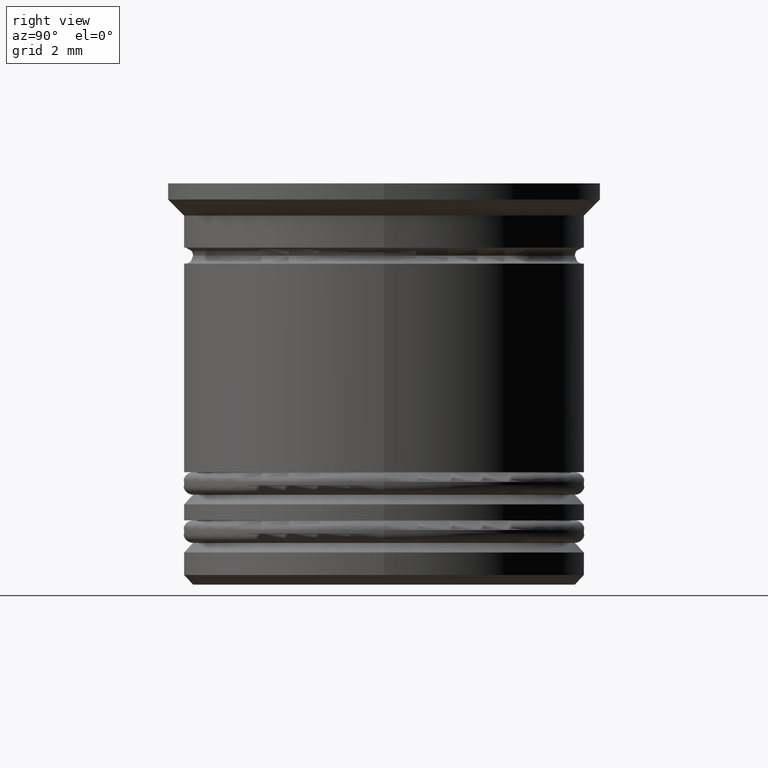
[diagram: clean part render]
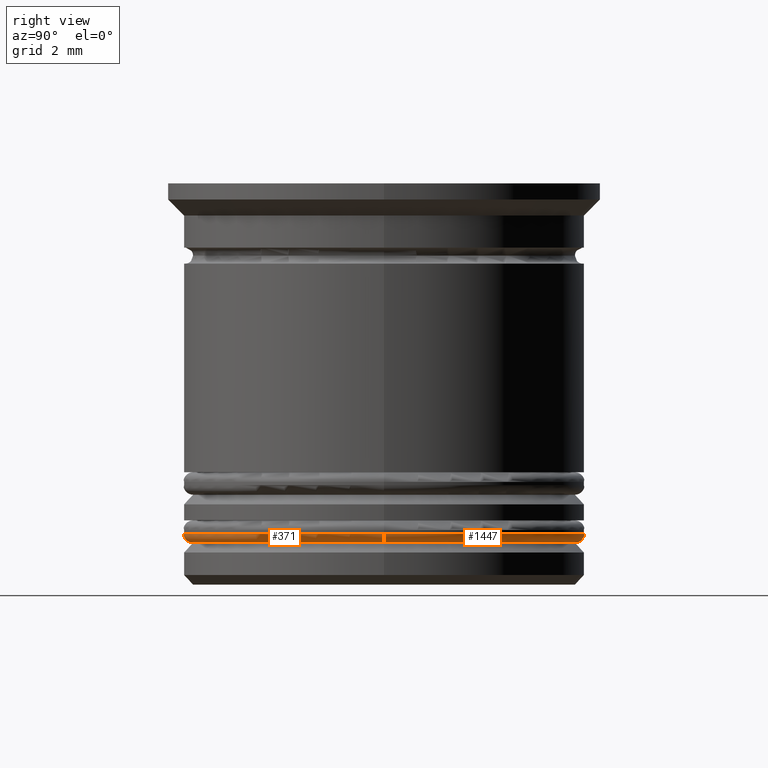
[diagram: same view with one multi-face feature highlighted, each face labeled with its STEP entity id]
A machine part, right view. The highlighted faces form ONE feature: a constant-radius fillet chain: 2 tangent blend faces with common blend radius 0.3 mm. The faces share edges in the B-rep.
Their STEP definitions:
[1] entity #1447 (Torus):
#67 = CARTESIAN_POINT ( 'NONE',  ( 0.000000000000000000, 0.000000000000000000, -10.90000000000001101 ) ) ;
#190 = EDGE_LOOP ( 'NONE', ( #525, #657, #953, #594 ) ) ;
#200 = DIRECTION ( 'NONE',  ( -1.000000000000000000, 1.224646799147353207E-16, 0.000000000000000000 ) ) ;
#220 = AXIS2_PLACEMENT_3D ( 'NONE', #67, #1611, #1134 ) ;
#262 = FACE_OUTER_BOUND ( 'NONE', #190, .T. ) ;
#280 = DIRECTION ( 'NONE',  ( 0.000000000000000000, 0.000000000000000000, 1.000000000000000000 ) ) ;
#314 = AXIS2_PLACEMENT_3D ( 'NONE', #1294, #1582, #200 ) ;
#334 = CARTESIAN_POINT ( 'NONE',  ( 5.950000000000000178, 0.000000000000000000, -11.20000000000000995 ) ) ;
#380 = TOROIDAL_SURFACE ( 'NONE', #1802, 5.950000000000000178, 0.2999999999999999889 ) ;
#418 = CIRCLE ( 'NONE', #314, 0.2999999999999999334 ) ;
#518 = CARTESIAN_POINT ( 'NONE',  ( 6.250000000000000000, 0.000000000000000000, -10.90000000000001101 ) ) ;
#525 = ORIENTED_EDGE ( 'NONE', *, *, #1536, .F. ) ;
#548 = CIRCLE ( 'NONE', #220, 6.250000000000000000 ) ;
#594 = ORIENTED_EDGE ( 'NONE', *, *, #877, .F. ) ;
#657 = ORIENTED_EDGE ( 'NONE', *, *, #1749, .T. ) ;
#877 = EDGE_CURVE ( 'NONE', #1562, #1283, #1665, .T. ) ;
#901 = DIRECTION ( 'NONE',  ( 1.000000000000000000, 0.000000000000000000, 0.000000000000000000 ) ) ;
#903 = AXIS2_PLACEMENT_3D ( 'NONE', #1549, #1541, #1229 ) ;
#953 = ORIENTED_EDGE ( 'NONE', *, *, #1853, .F. ) ;
#963 = DIRECTION ( 'NONE',  ( 0.000000000000000000, 0.000000000000000000, -1.000000000000000000 ) ) ;
#1006 = VERTEX_POINT ( 'NONE', #1924 ) ;
#1020 = CARTESIAN_POINT ( 'NONE',  ( -5.950000000000000178, 7.470345474798855279E-16, -11.20000000000000995 ) ) ;
#1134 = DIRECTION ( 'NONE',  ( 1.000000000000000000, 0.000000000000000000, 0.000000000000000000 ) ) ;
#1229 = DIRECTION ( 'NONE',  ( 1.000000000000000000, 0.000000000000000000, 0.000000000000000000 ) ) ;
#1247 = AXIS2_PLACEMENT_3D ( 'NONE', #1586, #1748, #963 ) ;
#1283 = VERTEX_POINT ( 'NONE', #518 ) ;
#1294 = CARTESIAN_POINT ( 'NONE',  ( -5.950000000000000178, 7.286648454926751965E-16, -10.90000000000001101 ) ) ;
#1447 = ADVANCED_FACE ( 'NONE', ( #262 ), #380, .T. ) ;
#1521 = CARTESIAN_POINT ( 'NONE',  ( 0.000000000000000000, 0.000000000000000000, -10.90000000000001101 ) ) ;
#1536 = EDGE_CURVE ( 'NONE', #1828, #1562, #1762, .T. ) ;
#1541 = DIRECTION ( 'NONE',  ( -0.000000000000000000, -0.000000000000000000, -1.000000000000000000 ) ) ;
#1549 = CARTESIAN_POINT ( 'NONE',  ( 0.000000000000000000, 0.000000000000000000, -11.20000000000000995 ) ) ;
#1562 = VERTEX_POINT ( 'NONE', #334 ) ;
#1582 = DIRECTION ( 'NONE',  ( 1.224646799147353207E-16, 1.000000000000000000, -0.000000000000000000 ) ) ;
#1586 = CARTESIAN_POINT ( 'NONE',  ( 5.950000000000000178, 0.000000000000000000, -10.90000000000001101 ) ) ;
#1611 = DIRECTION ( 'NONE',  ( 0.000000000000000000, 0.000000000000000000, 1.000000000000000000 ) ) ;
#1665 = CIRCLE ( 'NONE', #1247, 0.2999999999999999334 ) ;
#1748 = DIRECTION ( 'NONE',  ( 0.000000000000000000, -1.000000000000000000, 0.000000000000000000 ) ) ;
#1749 = EDGE_CURVE ( 'NONE', #1828, #1006, #418, .T. ) ;
#1762 = CIRCLE ( 'NONE', #903, 5.950000000000000178 ) ;
#1802 = AXIS2_PLACEMENT_3D ( 'NONE', #1521, #280, #901 ) ;
#1828 = VERTEX_POINT ( 'NONE', #1020 ) ;
#1853 = EDGE_CURVE ( 'NONE', #1283, #1006, #548, .T. ) ;
#1924 = CARTESIAN_POINT ( 'NONE',  ( -6.250000000000000000, 7.654042494670957606E-16, -10.90000000000001101 ) ) ;
[2] entity #371 (Torus):
#77 = EDGE_CURVE ( 'NONE', #1006, #1283, #470, .T. ) ;
#200 = DIRECTION ( 'NONE',  ( -1.000000000000000000, 1.224646799147353207E-16, 0.000000000000000000 ) ) ;
#284 = DIRECTION ( 'NONE',  ( 0.000000000000000000, 0.000000000000000000, 1.000000000000000000 ) ) ;
#314 = AXIS2_PLACEMENT_3D ( 'NONE', #1294, #1582, #200 ) ;
#334 = CARTESIAN_POINT ( 'NONE',  ( 5.950000000000000178, 0.000000000000000000, -11.20000000000000995 ) ) ;
#368 = DIRECTION ( 'NONE',  ( 1.000000000000000000, 0.000000000000000000, 0.000000000000000000 ) ) ;
#371 = ADVANCED_FACE ( 'NONE', ( #808 ), #1690, .T. ) ;
#375 = CIRCLE ( 'NONE', #414, 5.950000000000000178 ) ;
#413 = ORIENTED_EDGE ( 'NONE', *, *, #758, .F. ) ;
#414 = AXIS2_PLACEMENT_3D ( 'NONE', #1097, #1392, #923 ) ;
#418 = CIRCLE ( 'NONE', #314, 0.2999999999999999334 ) ;
#470 = CIRCLE ( 'NONE', #1560, 6.250000000000000000 ) ;
#518 = CARTESIAN_POINT ( 'NONE',  ( 6.250000000000000000, 0.000000000000000000, -10.90000000000001101 ) ) ;
#534 = AXIS2_PLACEMENT_3D ( 'NONE', #976, #1584, #368 ) ;
#758 = EDGE_CURVE ( 'NONE', #1562, #1828, #375, .T. ) ;
#796 = ORIENTED_EDGE ( 'NONE', *, *, #877, .T. ) ;
#808 = FACE_OUTER_BOUND ( 'NONE', #1988, .T. ) ;
#813 = ORIENTED_EDGE ( 'NONE', *, *, #77, .F. ) ;
#877 = EDGE_CURVE ( 'NONE', #1562, #1283, #1665, .T. ) ;
#923 = DIRECTION ( 'NONE',  ( 1.000000000000000000, 0.000000000000000000, 0.000000000000000000 ) ) ;
#963 = DIRECTION ( 'NONE',  ( 0.000000000000000000, 0.000000000000000000, -1.000000000000000000 ) ) ;
#976 = CARTESIAN_POINT ( 'NONE',  ( 0.000000000000000000, 0.000000000000000000, -10.90000000000001101 ) ) ;
#1006 = VERTEX_POINT ( 'NONE', #1924 ) ;
#1020 = CARTESIAN_POINT ( 'NONE',  ( -5.950000000000000178, 7.470345474798855279E-16, -11.20000000000000995 ) ) ;
#1097 = CARTESIAN_POINT ( 'NONE',  ( 0.000000000000000000, 0.000000000000000000, -11.20000000000000995 ) ) ;
#1247 = AXIS2_PLACEMENT_3D ( 'NONE', #1586, #1748, #963 ) ;
#1283 = VERTEX_POINT ( 'NONE', #518 ) ;
#1294 = CARTESIAN_POINT ( 'NONE',  ( -5.950000000000000178, 7.286648454926751965E-16, -10.90000000000001101 ) ) ;
#1392 = DIRECTION ( 'NONE',  ( -0.000000000000000000, -0.000000000000000000, -1.000000000000000000 ) ) ;
#1517 = DIRECTION ( 'NONE',  ( 1.000000000000000000, 0.000000000000000000, 0.000000000000000000 ) ) ;
#1560 = AXIS2_PLACEMENT_3D ( 'NONE', #1965, #284, #1517 ) ;
#1562 = VERTEX_POINT ( 'NONE', #334 ) ;
#1582 = DIRECTION ( 'NONE',  ( 1.224646799147353207E-16, 1.000000000000000000, -0.000000000000000000 ) ) ;
#1584 = DIRECTION ( 'NONE',  ( 0.000000000000000000, 0.000000000000000000, 1.000000000000000000 ) ) ;
#1586 = CARTESIAN_POINT ( 'NONE',  ( 5.950000000000000178, 0.000000000000000000, -10.90000000000001101 ) ) ;
#1665 = CIRCLE ( 'NONE', #1247, 0.2999999999999999334 ) ;
#1684 = ORIENTED_EDGE ( 'NONE', *, *, #1749, .F. ) ;
#1690 = TOROIDAL_SURFACE ( 'NONE', #534, 5.950000000000000178, 0.2999999999999999889 ) ;
#1748 = DIRECTION ( 'NONE',  ( 0.000000000000000000, -1.000000000000000000, 0.000000000000000000 ) ) ;
#1749 = EDGE_CURVE ( 'NONE', #1828, #1006, #418, .T. ) ;
#1828 = VERTEX_POINT ( 'NONE', #1020 ) ;
#1924 = CARTESIAN_POINT ( 'NONE',  ( -6.250000000000000000, 7.654042494670957606E-16, -10.90000000000001101 ) ) ;
#1965 = CARTESIAN_POINT ( 'NONE',  ( 0.000000000000000000, 0.000000000000000000, -10.90000000000001101 ) ) ;
#1988 = EDGE_LOOP ( 'NONE', ( #1684, #413, #796, #813 ) ) ;